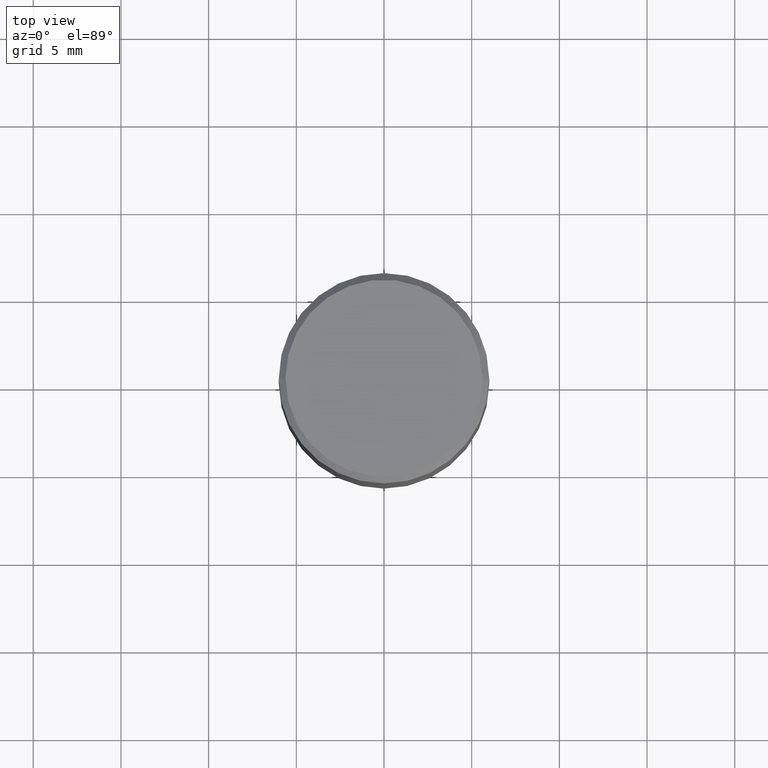
[diagram: clean part render]
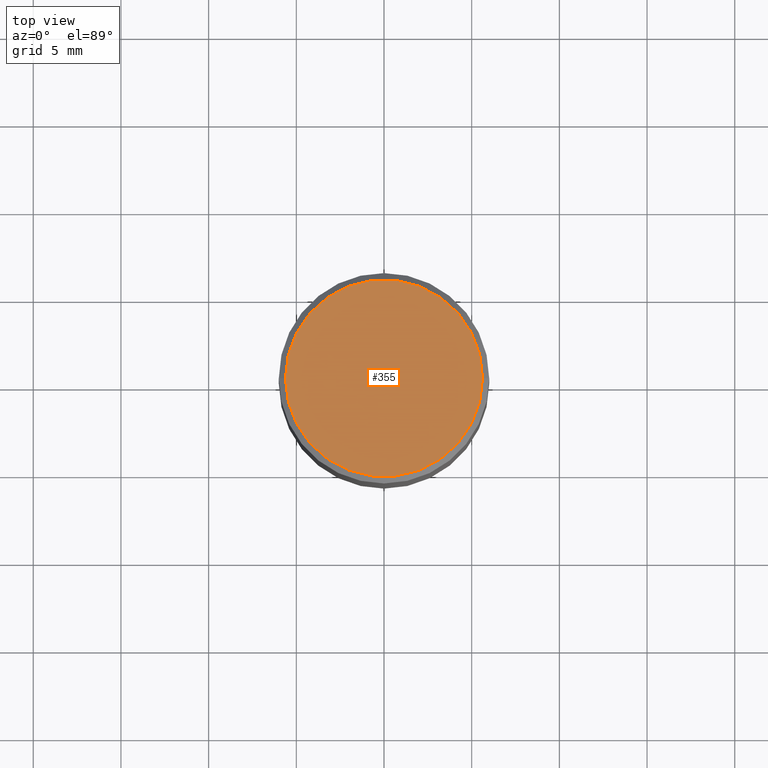
[diagram: same view with one face highlighted and labeled with its STEP entity id]
A machine part, top view. The second image highlights one B-rep face of the part: STEP entity #355.
In plain terms, the highlighted planar face has unit normal (0, -0, -1).
Its self-contained STEP definition (entity closure, byte-faithful):
#18 = PLANE ( 'NONE',  #288 ) ;
#34 = AXIS2_PLACEMENT_3D ( 'NONE', #353, #387, #313 ) ;
#46 = EDGE_LOOP ( 'NONE', ( #396, #70 ) ) ;
#67 = DIRECTION ( 'NONE',  ( 1.000000000000000000, -6.982962677686267499E-15, 4.877828720335458505E-29 ) ) ;
#70 = ORIENTED_EDGE ( 'NONE', *, *, #118, .T. ) ;
#76 = CARTESIAN_POINT ( 'NONE',  ( 0.2212000000000000077, -1.595182002131672613E-15, 4.701447564593453210E-17 ) ) ;
#79 = CIRCLE ( 'NONE', #34, 0.2212000000000000077 ) ;
#88 = DIRECTION ( 'NONE',  ( 2.438088387897960049E-29, -3.491481338843145188E-15, -1.000000000000000000 ) ) ;
#118 = EDGE_CURVE ( 'NONE', #138, #232, #373, .T. ) ;
#138 = VERTEX_POINT ( 'NONE', #76 ) ;
#160 = CARTESIAN_POINT ( 'NONE',  ( 1.544631344304202170E-15, 0.2212000000000000077, -7.488084343291421542E-16 ) ) ;
#211 = EDGE_CURVE ( 'NONE', #232, #138, #79, .T. ) ;
#232 = VERTEX_POINT ( 'NONE', #316 ) ;
#239 = CARTESIAN_POINT ( 'NONE',  ( -1.149724336312568549E-45, 1.641501643732376111E-31, 4.701447564592355584E-17 ) ) ;
#288 = AXIS2_PLACEMENT_3D ( 'NONE', #160, #88, #292 ) ;
#292 = DIRECTION ( 'NONE',  ( -1.000000000000000000, 6.982962677686265922E-15, -4.876176775795935793E-29 ) ) ;
#313 = DIRECTION ( 'NONE',  ( 1.000000000000000000, -6.982962677686267499E-15, 4.877828720335458505E-29 ) ) ;
#316 = CARTESIAN_POINT ( 'NONE',  ( -0.2212000000000000077, 1.570817454345525709E-15, 4.701447564591265970E-17 ) ) ;
#353 = CARTESIAN_POINT ( 'NONE',  ( -1.149724336312568549E-45, 1.641501643732376111E-31, 4.701447564592355584E-17 ) ) ;
#355 = ADVANCED_FACE ( 'NONE', ( #395 ), #18, .F. ) ;
#373 = CIRCLE ( 'NONE', #388, 0.2212000000000000077 ) ;
#380 = DIRECTION ( 'NONE',  ( -2.445468806185136597E-29, 3.491481338843145583E-15, 1.000000000000000000 ) ) ;
#387 = DIRECTION ( 'NONE',  ( -2.445468806185136597E-29, 3.491481338843145583E-15, 1.000000000000000000 ) ) ;
#388 = AXIS2_PLACEMENT_3D ( 'NONE', #239, #380, #67 ) ;
#395 = FACE_OUTER_BOUND ( 'NONE', #46, .T. ) ;
#396 = ORIENTED_EDGE ( 'NONE', *, *, #211, .T. ) ;